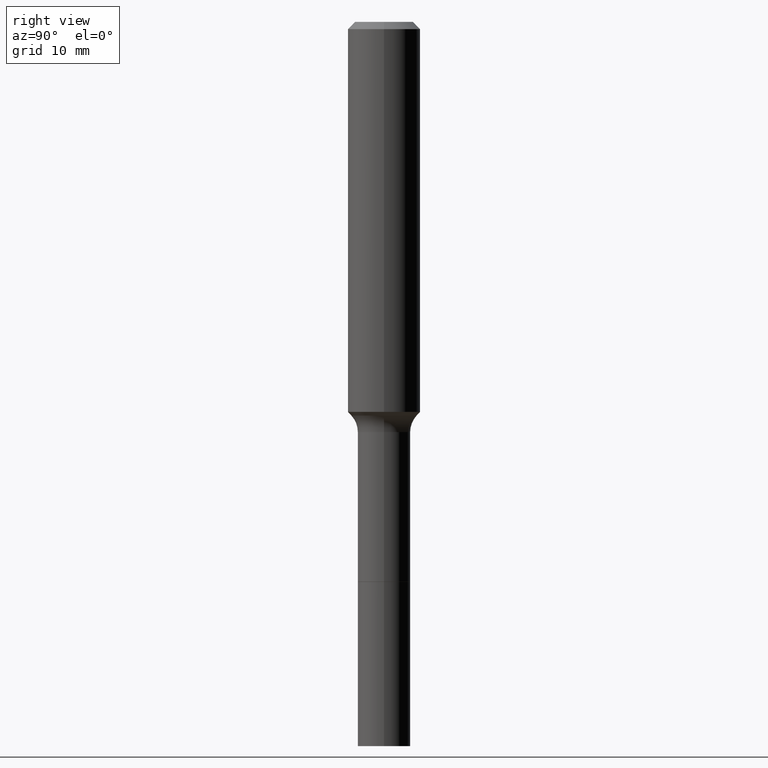
[diagram: clean part render]
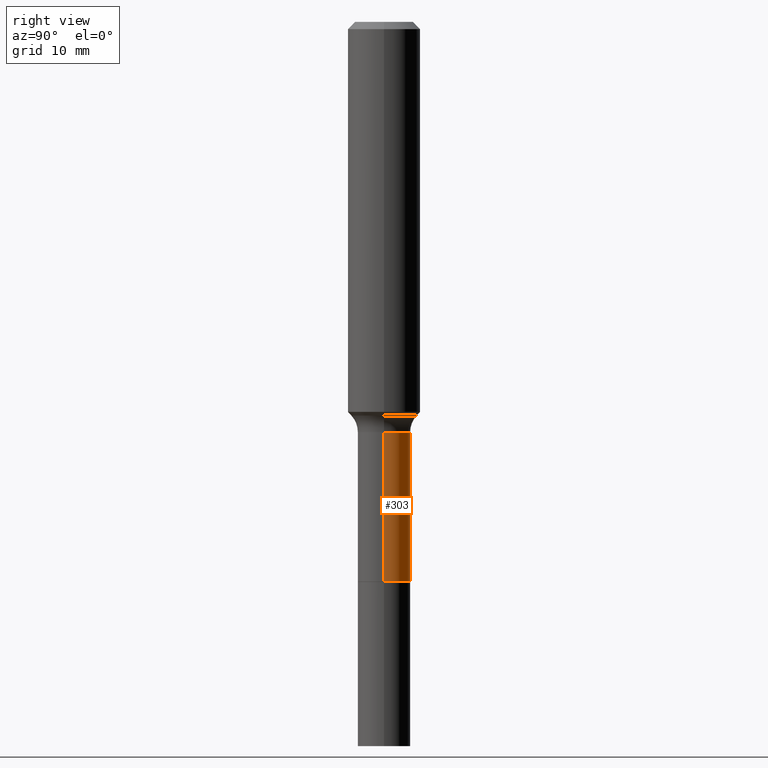
[diagram: same view with one face highlighted and labeled with its STEP entity id]
A machine part, right view. The second image highlights one B-rep face of the part: STEP entity #303.
In plain terms, the highlighted cylindrical surface (edge-blend (fillet) strip) has radius 2.1831 mm, axis along (-0, 0, 1).
Its self-contained STEP definition (entity closure, byte-faithful):
#35 = AXIS2_PLACEMENT_3D ( 'NONE', #184, #145, #486 ) ;
#36 = CARTESIAN_POINT ( 'NONE',  ( -0.08594999999999998475, -4.912637422597106570E-15, -1.825700000000000101 ) ) ;
#59 = AXIS2_PLACEMENT_3D ( 'NONE', #256, #421, #496 ) ;
#79 = ORIENTED_EDGE ( 'NONE', *, *, #210, .F. ) ;
#92 = CARTESIAN_POINT ( 'NONE',  ( 0.08594999999999992923, -5.272485969787030971E-15, -1.338200000000000056 ) ) ;
#96 = DIRECTION ( 'NONE',  ( -2.445468806185136597E-29, 3.491481338843145583E-15, 1.000000000000000000 ) ) ;
#98 = CYLINDRICAL_SURFACE ( 'NONE', #59, 0.08594999999999995699 ) ;
#100 = ORIENTED_EDGE ( 'NONE', *, *, #495, .F. ) ;
#103 = ORIENTED_EDGE ( 'NONE', *, *, #395, .T. ) ;
#145 = DIRECTION ( 'NONE',  ( -2.445468806185136597E-29, 3.491481338843145583E-15, 1.000000000000000000 ) ) ;
#147 = CARTESIAN_POINT ( 'NONE',  ( -0.08594999999999995699, 6.107114813858058042E-16, -4.227824710074089488E-30 ) ) ;
#169 = CARTESIAN_POINT ( 'NONE',  ( 0.08594999999999998475, -6.974583122473064793E-15, -1.825700000000000101 ) ) ;
#180 = DIRECTION ( 'NONE',  ( -2.445468806185136877E-29, 3.491481338843145188E-15, 1.000000000000000000 ) ) ;
#184 = CARTESIAN_POINT ( 'NONE',  ( 4.464692399452204323E-29, -6.374397480325931355E-15, -1.825700000000000101 ) ) ;
#210 = EDGE_CURVE ( 'NONE', #271, #257, #255, .T. ) ;
#222 = CARTESIAN_POINT ( 'NONE',  ( -0.08594999999999992923, -4.912637422597108147E-15, -1.338200000000000056 ) ) ;
#233 = DIRECTION ( 'NONE',  ( -2.445468806185136877E-29, 3.491481338843145188E-15, 1.000000000000000000 ) ) ;
#250 = DIRECTION ( 'NONE',  ( 1.000000000000000000, -6.982962677686266711E-15, 0.000000000000000000 ) ) ;
#255 = CIRCLE ( 'NONE', #344, 0.08594999999999992923 ) ;
#256 = CARTESIAN_POINT ( 'NONE',  ( 0.000000000000000000, 0.000000000000000000, 0.000000000000000000 ) ) ;
#257 = VERTEX_POINT ( 'NONE', #222 ) ;
#262 = LINE ( 'NONE', #147, #434 ) ;
#271 = VERTEX_POINT ( 'NONE', #92 ) ;
#301 = VERTEX_POINT ( 'NONE', #169 ) ;
#303 = ADVANCED_FACE ( 'NONE', ( #329 ), #98, .T. ) ;
#310 = CARTESIAN_POINT ( 'NONE',  ( 0.08594999999999995699, -6.001856421471342262E-16, 4.191073938796604437E-30 ) ) ;
#329 = FACE_OUTER_BOUND ( 'NONE', #429, .T. ) ;
#338 = ORIENTED_EDGE ( 'NONE', *, *, #439, .T. ) ;
#344 = AXIS2_PLACEMENT_3D ( 'NONE', #498, #96, #250 ) ;
#372 = LINE ( 'NONE', #310, #466 ) ;
#388 = VERTEX_POINT ( 'NONE', #36 ) ;
#395 = EDGE_CURVE ( 'NONE', #388, #257, #262, .T. ) ;
#421 = DIRECTION ( 'NONE',  ( -2.445468806185136597E-29, 3.491481338843145583E-15, 1.000000000000000000 ) ) ;
#426 = CIRCLE ( 'NONE', #35, 0.08594999999999998475 ) ;
#429 = EDGE_LOOP ( 'NONE', ( #338, #103, #79, #100 ) ) ;
#434 = VECTOR ( 'NONE', #233, 39.37007874015748143 ) ;
#439 = EDGE_CURVE ( 'NONE', #301, #388, #426, .T. ) ;
#466 = VECTOR ( 'NONE', #180, 39.37007874015748143 ) ;
#486 = DIRECTION ( 'NONE',  ( 1.000000000000000000, -6.982962677686261977E-15, 0.000000000000000000 ) ) ;
#495 = EDGE_CURVE ( 'NONE', #301, #271, #372, .T. ) ;
#496 = DIRECTION ( 'NONE',  ( 1.000000000000000000, -6.982962677686265922E-15, 4.876176775795935232E-29 ) ) ;
#498 = CARTESIAN_POINT ( 'NONE',  ( 3.272526356436949336E-29, -4.672300327639896745E-15, -1.338200000000000056 ) ) ;